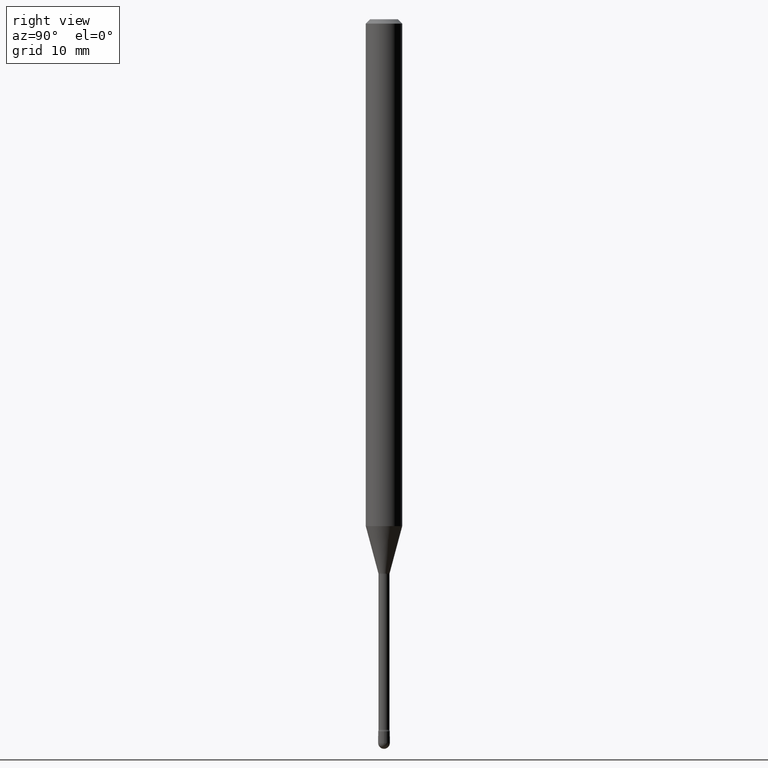
[diagram: clean part render]
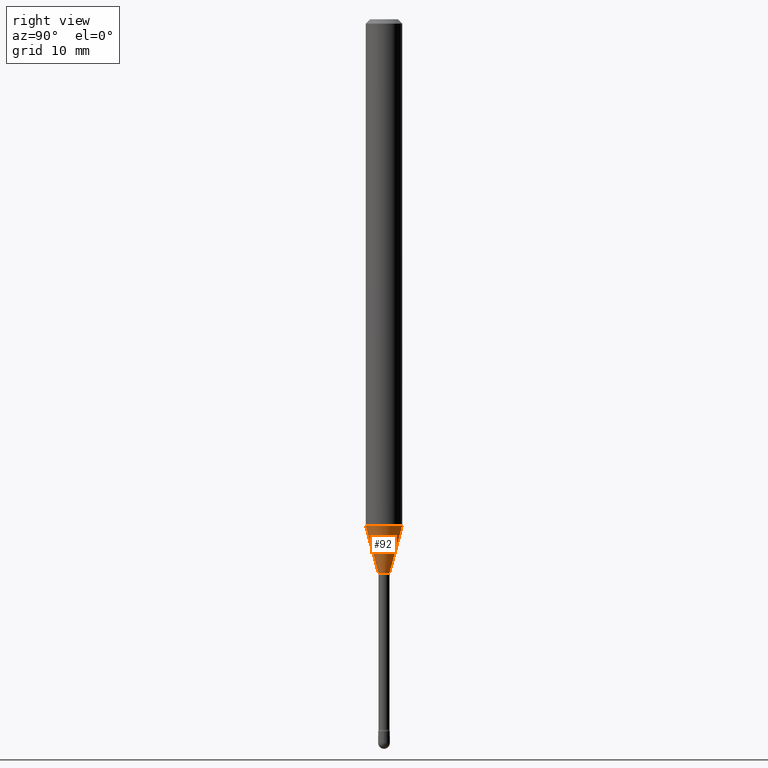
[diagram: same view with one face highlighted and labeled with its STEP entity id]
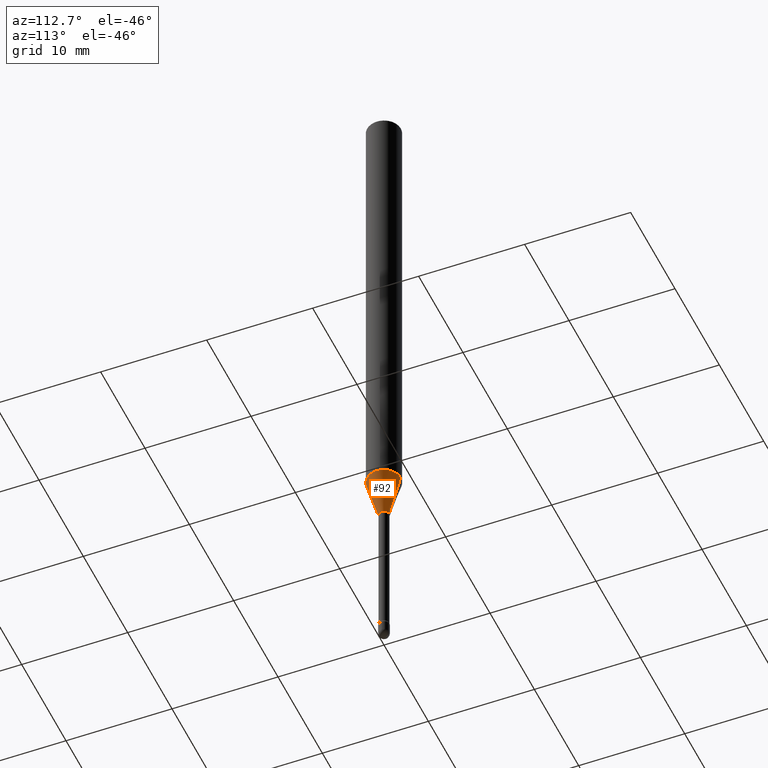
[diagram: same view with one face highlighted and labeled with its STEP entity id]
A machine part, right view. The second image highlights one B-rep face of the part: STEP entity #92.
A second angle (auxiliary view) of the same face is appended — the face is thin or edge-on in the first view.
In plain terms, the highlighted conical surface has half-angle 15 deg.
Its self-contained STEP definition (entity closure, byte-faithful):
#44 = CARTESIAN_POINT ( 'NONE',  ( 4.247470245999360012E-29, -6.064511936004368294E-15, -1.736909379709240531 ) ) ;
#47 = VECTOR ( 'NONE', #548, 39.37007874015748143 ) ;
#51 = ORIENTED_EDGE ( 'NONE', *, *, #430, .F. ) ;
#73 = CARTESIAN_POINT ( 'NONE',  ( -4.364351673553493174E-16, -0.06250000000000607847, -1.736909379709240309 ) ) ;
#92 = ADVANCED_FACE ( 'NONE', ( #499 ), #457, .T. ) ;
#104 = ORIENTED_EDGE ( 'NONE', *, *, #136, .F. ) ;
#112 = DIRECTION ( 'NONE',  ( -2.445418451658306189E-29, 3.491553449391568423E-15, 1.000000000000000000 ) ) ;
#126 = CARTESIAN_POINT ( 'NONE',  ( 4.641630426824874302E-29, -6.627291421879626172E-15, -1.898092501787273401 ) ) ;
#136 = EDGE_CURVE ( 'NONE', #469, #466, #396, .T. ) ;
#160 = CARTESIAN_POINT ( 'NONE',  ( -1.348487785899018972E-16, -0.01931111260567060575, -1.898092501787273401 ) ) ;
#168 = VECTOR ( 'NONE', #496, 39.37007874015748854 ) ;
#175 = CIRCLE ( 'NONE', #246, 0.01931111260566397564 ) ;
#202 = CARTESIAN_POINT ( 'NONE',  ( 4.440892098501048202E-16, 0.06249999999999392153, -1.736909379709240753 ) ) ;
#222 = AXIS2_PLACEMENT_3D ( 'NONE', #126, #112, #348 ) ;
#226 = DIRECTION ( 'NONE',  ( -6.982962677686265922E-15, -1.000000000000000000, 4.370956789862821150E-15 ) ) ;
#246 = AXIS2_PLACEMENT_3D ( 'NONE', #248, #286, #419 ) ;
#248 = CARTESIAN_POINT ( 'NONE',  ( 4.641630426824874302E-29, -6.627291421879626172E-15, -1.898092501787273401 ) ) ;
#251 = VERTEX_POINT ( 'NONE', #537 ) ;
#265 = EDGE_LOOP ( 'NONE', ( #433, #463, #104, #51 ) ) ;
#282 = CARTESIAN_POINT ( 'NONE',  ( 2.906514588320749949E-16, 0.01931111260565734900, -1.898092501787273401 ) ) ;
#286 = DIRECTION ( 'NONE',  ( -2.445418451658306189E-29, 3.491553449391568423E-15, 1.000000000000000000 ) ) ;
#330 = LINE ( 'NONE', #160, #47 ) ;
#348 = DIRECTION ( 'NONE',  ( -6.982962677686265922E-15, -1.000000000000000000, 0.000000000000000000 ) ) ;
#359 = LINE ( 'NONE', #489, #168 ) ;
#391 = EDGE_CURVE ( 'NONE', #398, #466, #359, .T. ) ;
#396 = CIRCLE ( 'NONE', #467, 0.06250000000000000000 ) ;
#398 = VERTEX_POINT ( 'NONE', #282 ) ;
#419 = DIRECTION ( 'NONE',  ( -6.982962677686265922E-15, -1.000000000000000000, 0.000000000000000000 ) ) ;
#430 = EDGE_CURVE ( 'NONE', #251, #469, #330, .T. ) ;
#431 = DIRECTION ( 'NONE',  ( -2.445418451658306189E-29, 3.491553449391568423E-15, 1.000000000000000000 ) ) ;
#433 = ORIENTED_EDGE ( 'NONE', *, *, #507, .T. ) ;
#457 = CONICAL_SURFACE ( 'NONE', #222, 0.01931111260566397564, 0.2617993877991498519 ) ;
#463 = ORIENTED_EDGE ( 'NONE', *, *, #391, .T. ) ;
#466 = VERTEX_POINT ( 'NONE', #202 ) ;
#467 = AXIS2_PLACEMENT_3D ( 'NONE', #44, #431, #226 ) ;
#469 = VERTEX_POINT ( 'NONE', #73 ) ;
#489 = CARTESIAN_POINT ( 'NONE',  ( 1.372137078140447505E-16, 0.01931111260565734900, -1.898092501787273401 ) ) ;
#496 = DIRECTION ( 'NONE',  ( 1.839019923739597160E-15, 0.2588190451025245142, 0.9659258262890670910 ) ) ;
#499 = FACE_OUTER_BOUND ( 'NONE', #265, .T. ) ;
#507 = EDGE_CURVE ( 'NONE', #251, #398, #175, .T. ) ;
#537 = CARTESIAN_POINT ( 'NONE',  ( -1.348487785899018972E-16, -0.01931111260567060575, -1.898092501787273401 ) ) ;
#548 = DIRECTION ( 'NONE',  ( -1.807323732225327378E-15, -0.2588190451025177974, 0.9659258262890690894 ) ) ;